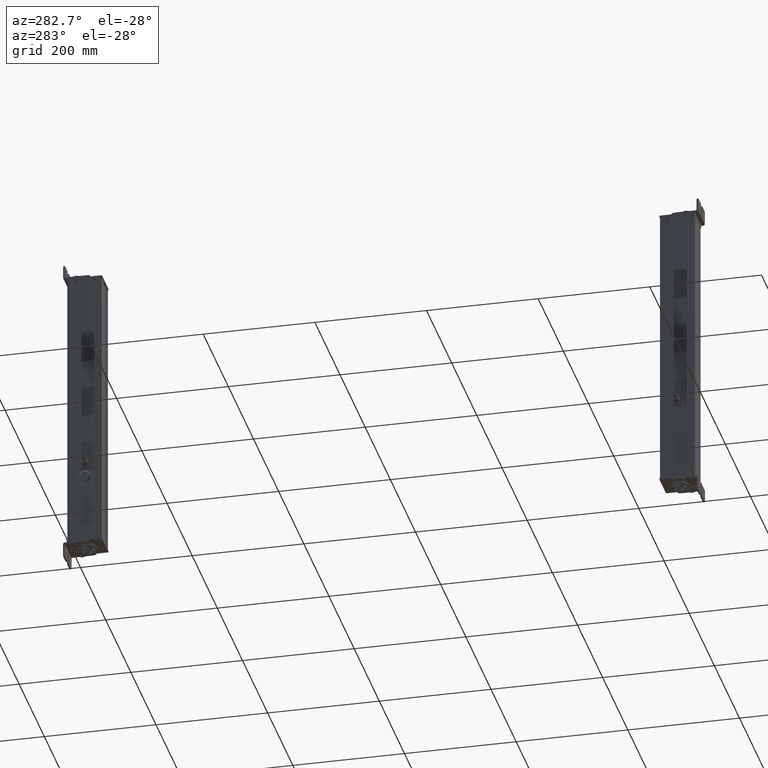
[diagram: clean part render]
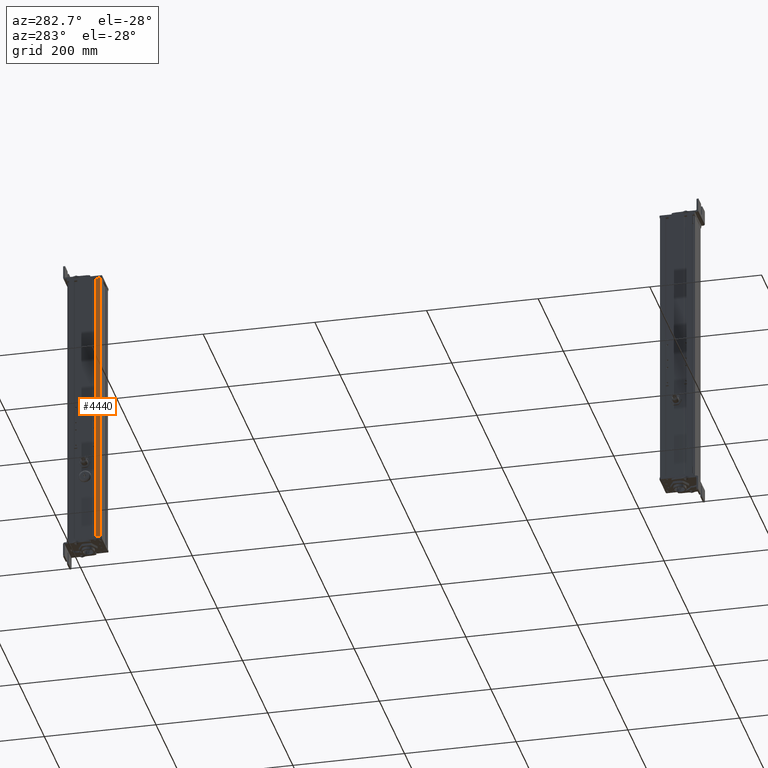
[diagram: same view with one face highlighted and labeled with its STEP entity id]
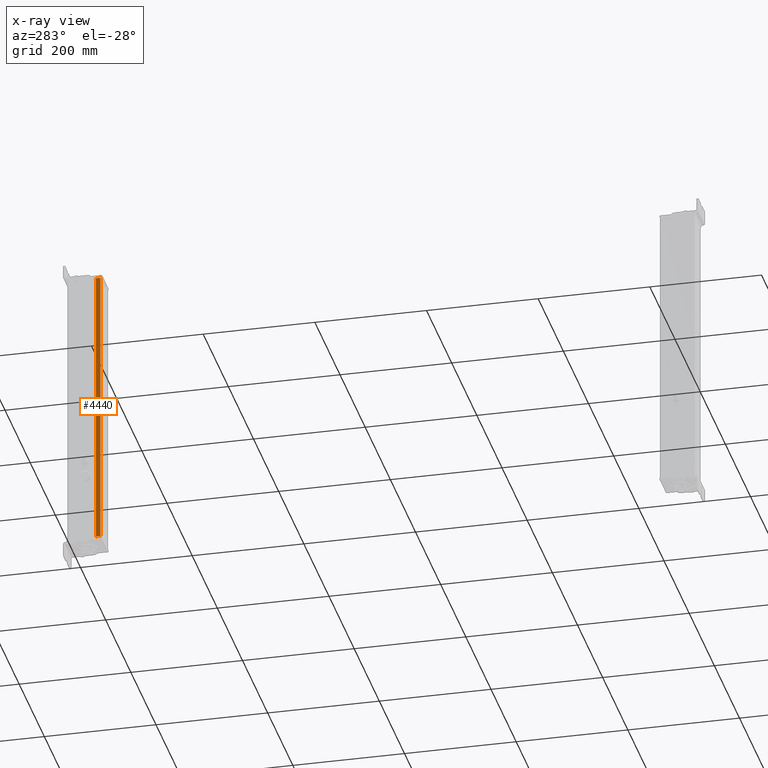
[diagram: x-ray of the same camera — body ghosted, the highlighted face saturated]
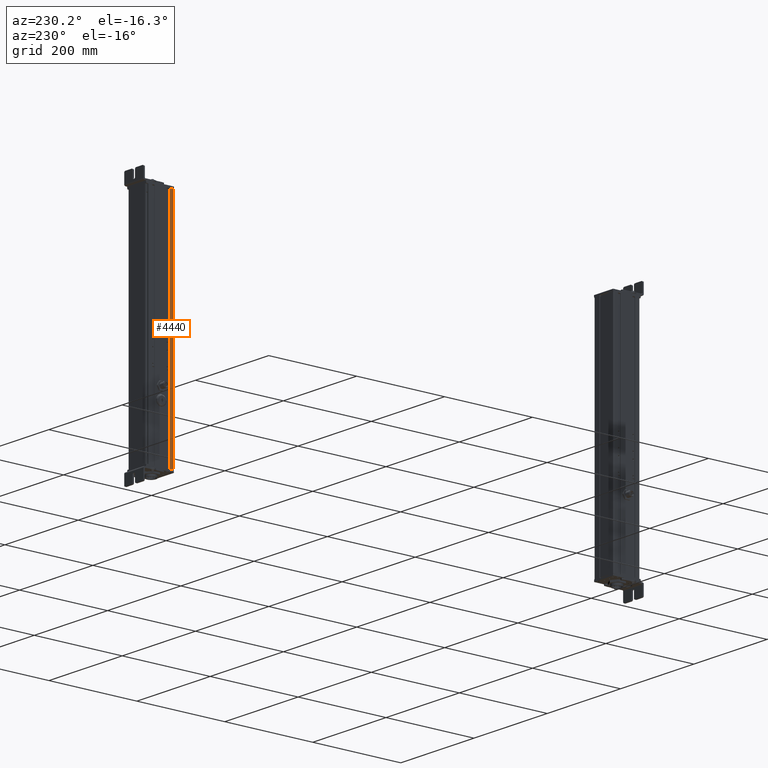
[diagram: same view with one face highlighted and labeled with its STEP entity id]
A machine part, auxiliary view. The second image highlights one B-rep face of the part: STEP entity #4440.
The next image is the same camera in x-ray: the body ghosted, the highlighted face saturated — about 0% of this face is hidden behind the body in this view.
A second angle (auxiliary view) of the same face is appended — the face is thin or edge-on in the first view.
In plain terms, the highlighted planar face has unit normal (-1, 0, 0).
Its self-contained STEP definition (entity closure, byte-faithful):
#2992=CARTESIAN_POINT('Axis2P3D Location',(666.195883662,171.710394004,0.)) ;
#4393=CARTESIAN_POINT('Vertex',(666.195883661,171.710394004,0.)) ;
#4396=CARTESIAN_POINT('Line Origine',(666.195883661,171.710394004,255.5)) ;
#4400=CARTESIAN_POINT('Vertex',(666.195883661,171.710394004,511.)) ;
#4415=CARTESIAN_POINT('Line Origine',(666.195883662,175.885298663,0.)) ;
#4419=CARTESIAN_POINT('Vertex',(666.195883662,180.060203323,0.)) ;
#4422=CARTESIAN_POINT('Line Origine',(666.195883662,180.060203323,255.5)) ;
#4426=CARTESIAN_POINT('Vertex',(666.195883662,180.060203323,511.)) ;
#4429=CARTESIAN_POINT('Line Origine',(666.195883662,175.885298663,511.)) ;
#2993=DIRECTION('Axis2P3D Direction',(1.,0.,0.)) ;
#2994=DIRECTION('Axis2P3D XDirection',(0.,1.,0.)) ;
#4397=DIRECTION('Vector Direction',(0.,0.,1.)) ;
#4416=DIRECTION('Vector Direction',(0.,1.,0.)) ;
#4423=DIRECTION('Vector Direction',(0.,0.,1.)) ;
#4430=DIRECTION('Vector Direction',(0.,1.,0.)) ;
#2995=AXIS2_PLACEMENT_3D('Plane Axis2P3D',#2992,#2993,#2994) ;
#4435=ORIENTED_EDGE('',*,*,#4402,.F.) ;
#4436=ORIENTED_EDGE('',*,*,#4421,.T.) ;
#4437=ORIENTED_EDGE('',*,*,#4428,.T.) ;
#4438=ORIENTED_EDGE('',*,*,#4433,.F.) ;
#4398=VECTOR('Line Direction',#4397,1.) ;
#4417=VECTOR('Line Direction',#4416,1.) ;
#4424=VECTOR('Line Direction',#4423,1.) ;
#4431=VECTOR('Line Direction',#4430,1.) ;
#4440=ADVANCED_FACE('Body.2',(#4439),#2996,.T.) ;
#4402=EDGE_CURVE('',#4394,#4401,#4399,.T.) ;
#4421=EDGE_CURVE('',#4394,#4420,#4418,.T.) ;
#4428=EDGE_CURVE('',#4420,#4427,#4425,.T.) ;
#4433=EDGE_CURVE('',#4401,#4427,#4432,.T.) ;
#4434=EDGE_LOOP('',(#4435,#4436,#4437,#4438)) ;
#4439=FACE_OUTER_BOUND('',#4434,.T.) ;
#4399=LINE('Line',#4396,#4398) ;
#4418=LINE('Line',#4415,#4417) ;
#4425=LINE('Line',#4422,#4424) ;
#4432=LINE('Line',#4429,#4431) ;
#2996=PLANE('Plane',#2995) ;
#4394=VERTEX_POINT('',#4393) ;
#4401=VERTEX_POINT('',#4400) ;
#4420=VERTEX_POINT('',#4419) ;
#4427=VERTEX_POINT('',#4426) ;